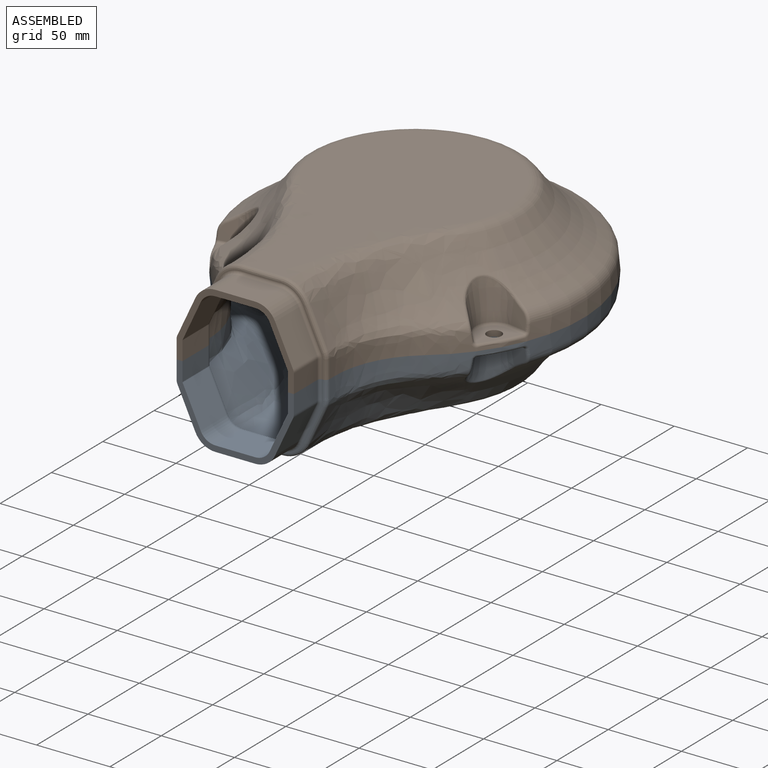
[diagram: assembled view]
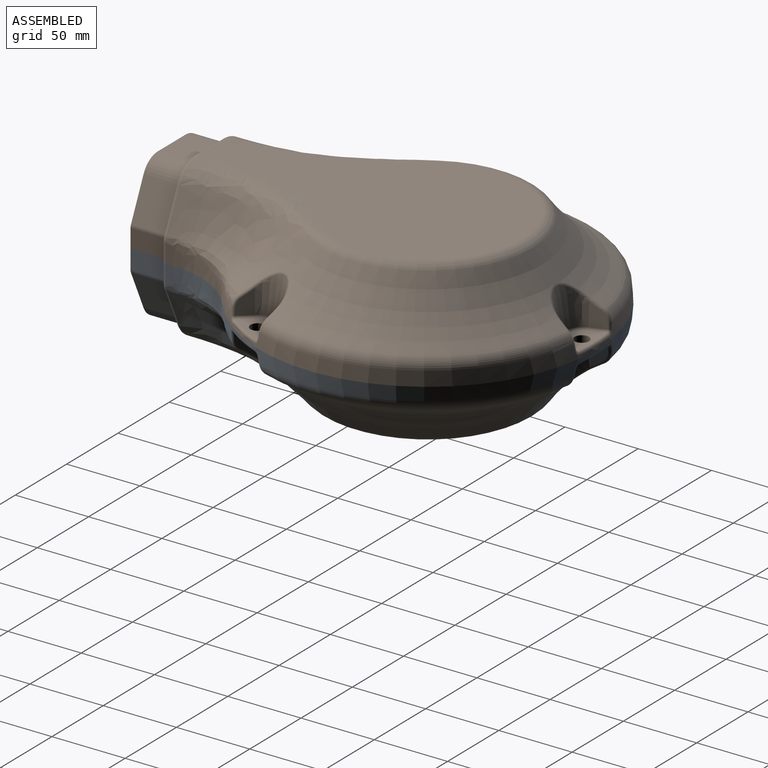
[diagram: assembled view, second angle]
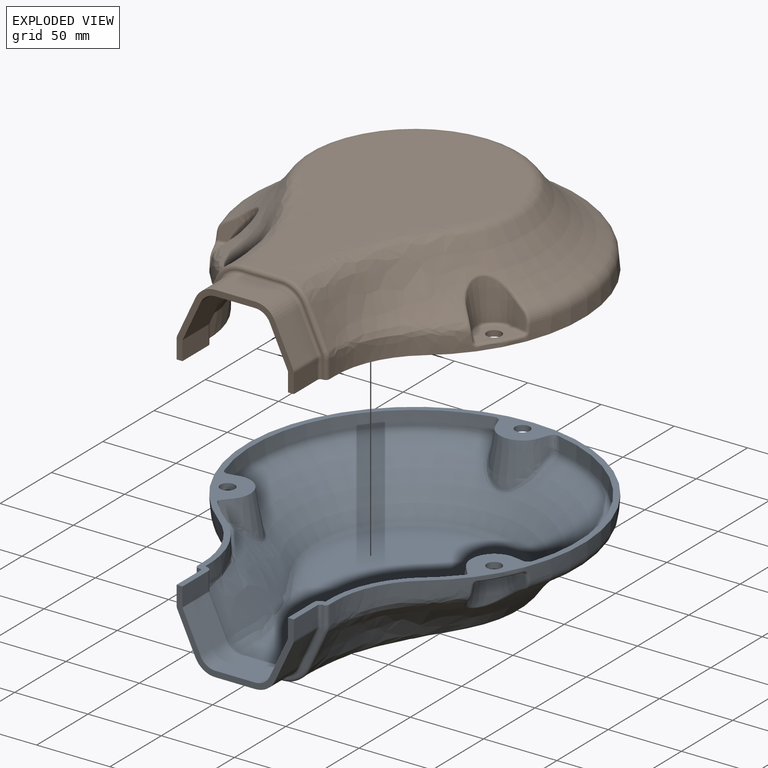
[diagram: exploded view]
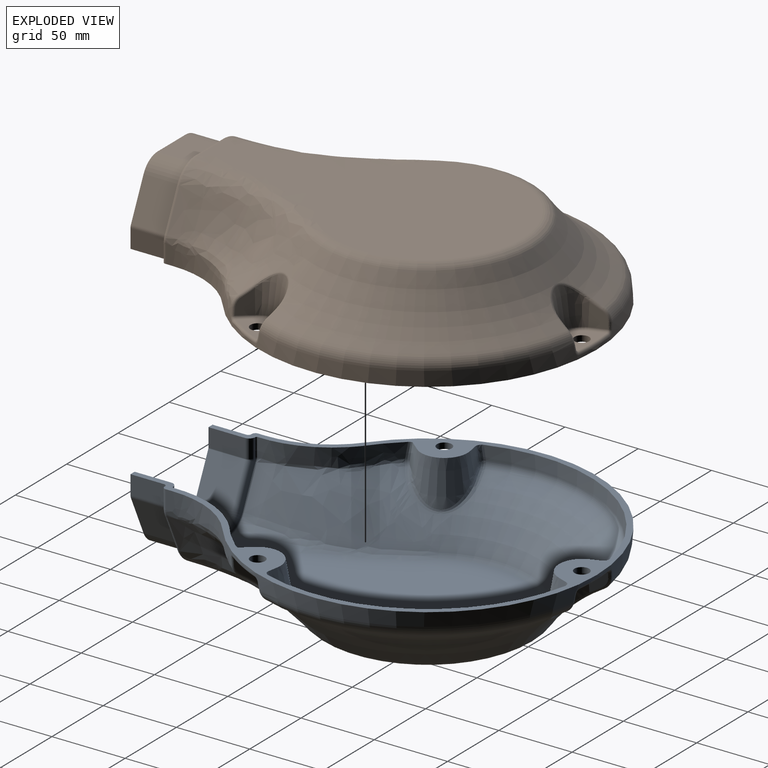
[diagram: exploded view, second angle]
ASSEMBLY  parts=2 mates=2
PART A: 166 faces, bbox 346.4x352.2x167.3 mm
  f0: plane 5.49x0.05mm, normal (0,1,0), area 0mm2, adj f148,f149,f163,f165
  f1: plane 3.48x0.41mm, normal (0,1,0), area 0mm2, adj f146,f159
  f2: plane 3.48x0.41mm, normal (0,1,0), area 0mm2, adj f144,f156
  f3: plane 290.09x230.09mm, normal (0,0,-1), area 4559mm2, adj f4,f6,f9,f10,f25,f33,f34,f35
  f4: plane 85.01x52.5mm, normal (0,-1,0), area 69.5mm2, adj f3,f119,f120,f121,f122,f123,f124,f125
  f5: torus R=156.34mm, axis (0,0,1), area 17100.1mm2, adj f7,f8,f9,f10,f11,f63,f64,f65
  f6: cone r=115mm half-angle=5deg, axis (0,0,-1), area 4045.1mm2, adj f3,f7,f8,f9,f10,f69,f72,f73
  f7: torus R=104.21mm, axis (0,0,1), area 1953.4mm2, adj f5,f6,f68,f79
  f8: torus R=104.21mm, axis (0,0,1), area 1953.4mm2, adj f5,f6,f66,f95
  f9: bspline ~151.5x100.15mm, area 11706.1mm2, adj f3,f5,f6,f10,f11,f12,f78,f82
  f10: bspline ~151.5x100.15mm, area 11706.2mm2, adj f3,f5,f6,f9,f11,f12,f90,f92
  f11: torus R=64.44mm, axis (0,0,1), area 2858.3mm2, adj f5,f9,f10,f12
  f12: plane 128.88x96.66mm, normal (0,0,1), area 8697mm2, adj f9,f10,f11
  f13: plane 26.25x23.55mm, normal (0,0,1), area 292.7mm2, adj f93,f94,f97,f99,f101,f131
  f14: plane 15.31x9.53mm, normal (0.75,0.63,0.17), area 131.2mm2, adj f16,f92,f93
  f15: plane 14.66x11.38mm, normal (-0.17,-0.97,0.17), area 126.8mm2, adj f16,f91,f95,f97,f98
  f16: cone r=12.5mm half-angle=10deg, axis (0,0,1), area 752.2mm2, adj f14,f15,f89,f90,f94
  f17: plane 26.25x23.55mm, normal (0,0,1), area 292.7mm2, adj f80,f81,f84,f87,f88,f130
  f18: plane 14.66x11.38mm, normal (0.17,-0.97,0.17), area 126.8mm2, adj f20,f77,f79,f83,f84
  f19: plane 15.31x9.53mm, normal (-0.75,0.63,0.17), area 131.2mm2, adj f20,f81,f82
  f20: cone r=12.5mm half-angle=10deg, axis (0,0,1), area 752.3mm2, adj f18,f19,f76,f78,f80
  f21: plane 27.87x18.34mm, normal (0,0,1), area 292.5mm2, adj f67,f70,f71,f75,f129
  f22: plane 14.66x11.74mm, normal (-0.93,0.34,0.17), area 126.8mm2, adj f24,f64,f66,f69,f70
  f23: plane 14.66x11.74mm, normal (0.93,0.34,0.17), area 126.8mm2, adj f24,f65,f68,f71,f72
  f24: cone r=12.5mm half-angle=10deg, axis (0,0,1), area 790.8mm2, adj f22,f23,f63,f67
  f25: plane 23x12.78mm, normal (1,0,0), area 294mm2, adj f3,f26,f34,f132
  f26: cylinder r=5mm len=23mm, axis (0,-1,0), area 50.2mm2, adj f25,f27,f34,f133
  f27: plane 26.44x23mm, normal (0.91,0,0.42), area 671.1mm2, adj f26,f28,f34,f134
  f28: cylinder r=15mm len=23mm, axis (0,-1,0), area 391.4mm2, adj f27,f29,f34,f135
  f29: plane 27.21x23mm, normal (0,0,1), area 625.9mm2, adj f28,f30,f34,f136
  f30: cylinder r=15mm len=23mm, axis (0,-1,0), area 391.4mm2, adj f29,f31,f34,f137
  f31: plane 26.44x23mm, normal (-0.91,0,0.42), area 671.1mm2, adj f30,f32,f34,f138
  f32: cylinder r=5mm len=23mm, axis (0,-1,0), area 50.2mm2, adj f31,f33,f34,f139
  f33: plane 23x12.78mm, normal (-1,0,0), area 294mm2, adj f3,f32,f34,f140
  f34: plane 80x50mm, normal (0,-1,0), area 573mm2, adj f3,f25,f26,f27,f28,f29,f30,f31
  f35: cone r=111.02mm half-angle=5deg, axis (0,0,-1), area 1703.9mm2, adj f3,f40,f102,f118
  f36: plane 5.49x0.05mm, normal (0,1,0), area 0mm2, adj f141,f142,f151,f152
  f37: torus R=156.34mm, axis (0,0,1), area 16737.6mm2, adj f39,f40,f41,f42,f43,f104,f105,f106
  f38: cone r=111.02mm half-angle=5deg, axis (0,0,-1), area 1703.9mm2, adj f3,f39,f107,f112
  f39: torus R=104.21mm, axis (0,0,1), area 1080.7mm2, adj f37,f38,f108,f113
  f40: torus R=104.21mm, axis (0,0,1), area 1080.7mm2, adj f35,f37,f103,f117
  f41: offset ~159.5x108.15mm, area 10738.5mm2, adj f3,f37,f42,f43,f44,f111,f158,f159
  f42: offset ~159.5x108.15mm, area 10738.5mm2, adj f3,f37,f41,f43,f44,f106,f150,f151
  f43: torus R=64.44mm, axis (0,0,1), area 1670.3mm2, adj f37,f41,f42,f44
  f44: plane 128.88x96.66mm, normal (0,0,-1), area 8697mm2, adj f41,f42,f43
  f45: plane 14.82x8.07mm, normal (-0.75,-0.63,-0.17), area 122.6mm2, adj f3,f47,f106
  f46: plane 14.07x6.74mm, normal (0.17,0.97,-0.17), area 80.3mm2, adj f3,f47,f102,f103,f104
  f47: cone r=16.44mm half-angle=10deg, axis (0,0,1), area 972.4mm2, adj f3,f45,f46,f105,f106
  f48: plane 14.07x6.74mm, normal (-0.17,0.97,-0.17), area 80.3mm2, adj f3,f50,f107,f108,f109
  f49: plane 14.82x8.07mm, normal (0.75,-0.63,-0.17), area 122.6mm2, adj f3,f50,f111
  f50: cone r=16.44mm half-angle=10deg, axis (0,0,1), area 972.4mm2, adj f3,f48,f49,f110,f111
  f51: plane 14.07x7.28mm, normal (0.93,-0.34,-0.17), area 80.3mm2, adj f3,f53,f116,f117,f118
  f52: plane 14.07x7.28mm, normal (-0.93,-0.34,-0.17), area 80.3mm2, adj f3,f53,f112,f113,f114
  f53: cone r=16.44mm half-angle=10deg, axis (0,0,1), area 1025.2mm2, adj f3,f51,f52,f115
  f54: plane 25x12.78mm, normal (-1,0,0), area 319.6mm2, adj f3,f34,f55,f141
  f55: cylinder r=1mm len=25mm, axis (0,-1,0), area 10.9mm2, adj f34,f54,f56,f142
  f56: plane 26.44x25mm, normal (-0.91,0,-0.42), area 729.4mm2, adj f34,f55,f57,f143
  f57: cylinder r=11mm len=25mm, axis (0,-1,0), area 312mm2, adj f34,f56,f58,f144
  f58: plane 27.21x25mm, normal (0,0,-1), area 680.3mm2, adj f34,f57,f59,f145
  f59: cylinder r=11mm len=25mm, axis (0,-1,0), area 312mm2, adj f34,f58,f60,f146
  f60: plane 26.44x25mm, normal (0.91,0,-0.42), area 729.4mm2, adj f34,f59,f61,f147
  f61: cylinder r=1mm len=25mm, axis (0,-1,0), area 10.9mm2, adj f34,f60,f62,f148
  f62: plane 25x12.78mm, normal (1,0,0), area 319.6mm2, adj f3,f34,f61,f149
  f63: bspline ~33.7x15.45mm, area 93.2mm2, adj f5,f24,f64,f65
  f64: bspline ~21.97x14.31mm, area 22.3mm2, adj f5,f22,f63,f66
  f65: bspline ~21.97x14.31mm, area 22.3mm2, adj f5,f23,f63,f68
  f66: bspline ~10.47x6.21mm, area 24.3mm2, adj f8,f22,f64,f69
  f67: torus R=10.82mm, axis (0,0,1), area 81.9mm2, adj f21,f24,f70,f71
  f68: bspline ~9.07x7.49mm, area 24.3mm2, adj f7,f23,f65,f72
  f69: bspline ~78.59x13.74mm, area 11.1mm2, adj f6,f22,f66,f73
  f70: cylinder r=2mm len=11.53mm, axis (0.34,0.94,0), area 31.5mm2, adj f21,f22,f67,f73
  f71: cylinder r=2mm len=11.53mm, axis (-0.34,0.94,0), area 31.5mm2, adj f21,f23,f67,f74
  f72: bspline ~78.59x13.74mm, area 11.1mm2, adj f6,f23,f68,f74
  f73: bspline ~4.95x3.98mm, area 11.1mm2, adj f6,f69,f70,f75
  f74: bspline ~4.59x4.16mm, area 11.1mm2, adj f6,f71,f72,f75
  f75: torus R=112.82mm, axis (0,0,1), area 83.8mm2, adj f6,f21,f73,f74
  f76: bspline ~22.84x14.17mm, area 46.7mm2, adj f5,f20,f77,f78
  f77: bspline ~22.35x14.31mm, area 22.3mm2, adj f5,f18,f76,f79
  f78: bspline ~23.54x13.65mm, area 44.2mm2, adj f9,f20,f76,f82
  f79: bspline ~11.05x7.62mm, area 24.3mm2, adj f7,f18,f77,f83
  f80: torus R=10.82mm, axis (0,0,1), area 81.9mm2, adj f17,f20,f81,f84
  f81: cylinder r=2mm len=10.15mm, axis (-0.64,-0.77,0), area 31.6mm2, adj f17,f19,f80,f85
  f82: bspline ~34.73x24.61mm, area 58mm2, adj f9,f19,f78,f85
  f83: bspline ~78.59x16.01mm, area 11.1mm2, adj f6,f18,f79,f86
  f84: cylinder r=2mm len=11.72mm, axis (-0.98,-0.17,0), area 31.5mm2, adj f17,f18,f80,f86
  f85: bspline ~4.5x4.18mm, area 11.2mm2, adj f9,f81,f82,f87
  f86: bspline ~4.83x3.98mm, area 11.1mm2, adj f6,f83,f84,f88
  f87: bspline ~40.78x26.85mm, area 42mm2, adj f9,f17,f85,f88
  f88: torus R=112.82mm, axis (0,0,1), area 41.9mm2, adj f6,f17,f86,f87
  f89: bspline ~22.84x14.17mm, area 46.6mm2, adj f5,f16,f90,f91
  f90: bspline ~23.54x13.64mm, area 44.1mm2, adj f10,f16,f89,f92
  f91: bspline ~22.35x14.31mm, area 22.3mm2, adj f5,f15,f89,f95
  f92: bspline ~34.73x24.61mm, area 58mm2, adj f10,f14,f90,f96
  f93: cylinder r=2mm len=10.15mm, axis (0.64,-0.77,0), area 31.6mm2, adj f13,f14,f94,f96
  f94: torus R=10.82mm, axis (0,0,1), area 81.9mm2, adj f13,f16,f93,f97
  f95: bspline ~9.07x7.61mm, area 24.3mm2, adj f8,f15,f91,f98
  f96: bspline ~4.69x4.01mm, area 11.2mm2, adj f10,f92,f93,f99
  f97: cylinder r=2mm len=11.72mm, axis (0.98,-0.17,0), area 31.5mm2, adj f13,f15,f94,f100
  f98: bspline ~78.59x16.01mm, area 11.1mm2, adj f6,f15,f95,f100
  f99: bspline ~40.78x26.85mm, area 42mm2, adj f10,f13,f96,f101
  f100: bspline ~4.47x4.16mm, area 11.1mm2, adj f6,f97,f98,f101
  f101: torus R=112.82mm, axis (0,0,1), area 41.9mm2, adj f6,f13,f99,f100
  f102: bspline ~120.58x25.69mm, area 54mm2, adj f3,f35,f46,f103
  f103: bspline ~6.29x5.55mm, area 23.8mm2, adj f40,f46,f102,f104
  f104: bspline ~27.43x17.59mm, area 32.1mm2, adj f37,f46,f103,f105
  f105: bspline ~28.17x19.18mm, area 118.2mm2, adj f37,f47,f104,f106
  f106: bspline ~32.98x32.95mm, area 175.2mm2, adj f3,f37,f42,f45,f47,f105
  f107: bspline ~120.58x25.69mm, area 54mm2, adj f3,f38,f48,f108
  f108: bspline ~6.63x5.85mm, area 23.8mm2, adj f39,f48,f107,f109
  f109: bspline ~27.43x17.59mm, area 32.1mm2, adj f37,f48,f108,f110
  f110: bspline ~26.29x17.96mm, area 118.2mm2, adj f37,f50,f109,f111
  f111: bspline ~35.03x32.92mm, area 175.8mm2, adj f3,f37,f41,f49,f50,f110
  f112: bspline ~120.58x22.17mm, area 54mm2, adj f3,f38,f52,f113
  f113: bspline ~6.63x5.1mm, area 23.8mm2, adj f39,f52,f112,f114
  f114: bspline ~19.24x12.47mm, area 32.1mm2, adj f37,f52,f113,f115
  f115: bspline ~43.72x19.72mm, area 235.9mm2, adj f37,f53,f114,f116
  f116: bspline ~26.49x17.59mm, area 32.1mm2, adj f37,f51,f115,f117
  f117: bspline ~6.63x5.1mm, area 23.8mm2, adj f40,f51,f116,f118
  f118: bspline ~120.58x22.17mm, area 54mm2, adj f3,f35,f51,f117
  f119: bspline ~18.06x2.51mm, area 50.2mm2, adj f3,f4,f9,f120
  f120: bspline ~11.09x6.3mm, area 15.6mm2, adj f4,f9,f119,f121
  f121: bspline ~28.19x15.01mm, area 117.8mm2, adj f4,f9,f120,f122
  f122: bspline ~33.21x20.6mm, area 85.6mm2, adj f4,f9,f121,f123
  f123: bspline ~25.61x2.51mm, area 53.4mm2, adj f4,f9,f122,f124
  f124: bspline ~25.13x2.5mm, area 53.4mm2, adj f4,f10,f123,f125
  f125: bspline ~33.2x20.59mm, area 85.6mm2, adj f4,f10,f124,f126
  f126: bspline ~28.21x15.03mm, area 117.9mm2, adj f4,f10,f125,f127
  f127: bspline ~5.48x3.61mm, area 15.6mm2, adj f4,f10,f126,f128
  f128: bspline ~18.19x2.52mm, area 50.2mm2, adj f3,f4,f10,f127
  f129: cylinder r=5mm len=10mm, axis (0,0,1), area 125.7mm2, adj f3,f21
  f130: cylinder r=5mm len=10mm, axis (0,0,1), area 125.7mm2, adj f3,f17
  f131: cylinder r=5mm len=10mm, axis (0,0,1), area 125.7mm2, adj f3,f13
  f132: cylinder r=2mm len=12.78mm, axis (0,0,-1), area 40.2mm2, adj f3,f4,f25,f133
  f133: torus R=7mm, axis (0,-1,0), area 7.9mm2, adj f4,f26,f132,f134
  f134: cylinder r=2mm len=27.29mm, axis (0.42,0,-0.91), area 91.7mm2, adj f4,f27,f133,f135
  f135: torus R=17mm, axis (0,-1,0), area 56.1mm2, adj f4,f28,f134,f136
  f136: cylinder r=2mm len=27.21mm, axis (1,0,0), area 85.5mm2, adj f4,f29,f135,f137
  f137: torus R=17mm, axis (0,-1,0), area 56.1mm2, adj f4,f30,f136,f138
  f138: cylinder r=2mm len=27.29mm, axis (0.42,0,0.91), area 91.7mm2, adj f4,f31,f137,f139
  f139: torus R=7mm, axis (0,-1,0), area 7.9mm2, adj f4,f32,f138,f140
  f140: cylinder r=2mm len=12.78mm, axis (0,0,1), area 40.2mm2, adj f3,f4,f33,f139
  f141: cylinder r=4mm len=12.78mm, axis (0,0,1), area 80.3mm2, adj f3,f36,f54,f142,f150
  f142: torus R=5mm, axis (0,-1,0), area 6.7mm2, adj f36,f55,f141,f143,f153
  f143: cylinder r=4mm len=28.11mm, axis (-0.42,0,0.91), area 177.9mm2, adj f56,f142,f144,f154
  f144: torus R=15mm, axis (0,-1,0), area 87.6mm2, adj f2,f57,f143,f145,f155
  f145: cylinder r=4mm len=27.21mm, axis (-1,0,0), area 171mm2, adj f58,f144,f146,f157,f158
  f146: torus R=15mm, axis (0,-1,0), area 87.6mm2, adj f1,f59,f145,f147,f160
  f147: cylinder r=4mm len=28.11mm, axis (-0.42,0,-0.91), area 177.9mm2, adj f60,f146,f148,f161
  f148: torus R=5mm, axis (0,-1,0), area 6.7mm2, adj f0,f61,f147,f149,f162
  f149: cylinder r=4mm len=12.78mm, axis (0,0,-1), area 80.3mm2, adj f0,f3,f62,f148,f164
  f150: bspline ~11.7x1.01mm, area 12.4mm2, adj f3,f42,f141,f151
  f151: bspline ~6.55x1.02mm, area 7.6mm2, adj f36,f42,f150,f152
  f152: bspline ~1.42x1.1mm, area 1.1mm2, adj f36,f42,f151,f153
  f153: bspline ~3.16x1.93mm, area 2.8mm2, adj f42,f142,f152,f154
  f154: bspline ~27.4x13.63mm, area 45.6mm2, adj f42,f143,f153,f155
  f155: bspline ~13.19x11.16mm, area 21.9mm2, adj f42,f144,f154,f156
  f156: bspline ~16.06x1.78mm, area 5.7mm2, adj f2,f42,f155,f157
  f157: bspline ~25.46x1.02mm, area 21.4mm2, adj f42,f145,f156,f158
  f158: bspline ~24.79x1mm, area 21.4mm2, adj f41,f145,f157,f159
  f159: bspline ~16.06x1.78mm, area 5.7mm2, adj f1,f41,f158,f160
  f160: bspline ~11.97x10.94mm, area 21.9mm2, adj f41,f146,f159,f161
  f161: bspline ~27.32x13.57mm, area 45.6mm2, adj f41,f147,f160,f162
  f162: bspline ~3.16x1.93mm, area 2.8mm2, adj f41,f148,f161,f163
  f163: bspline ~1.42x1.1mm, area 1.1mm2, adj f0,f41,f162,f165
  f164: bspline ~11.7x1.01mm, area 12.4mm2, adj f3,f41,f149,f165
  f165: bspline ~6.97x1.03mm, area 7.6mm2, adj f0,f41,f163,f164
PART B: same geometry as A
PLACE A rot(axis=(0,1,0),180deg) t=(-192.72,-113.27,-123.69)mm
PLACE B rot(axis=(0,-1,0),0deg) t=(-192.72,-113.27,-123.69)mm
MATE cylindrical B.f131 <-> A.f130  axis (0,0,1) through (-101.78,-165.77,-119.69)mm
MATE planar B.f3 <-> A.f3  axis (0,0,-1) through (-113.67,-176.12,-123.69)mm
